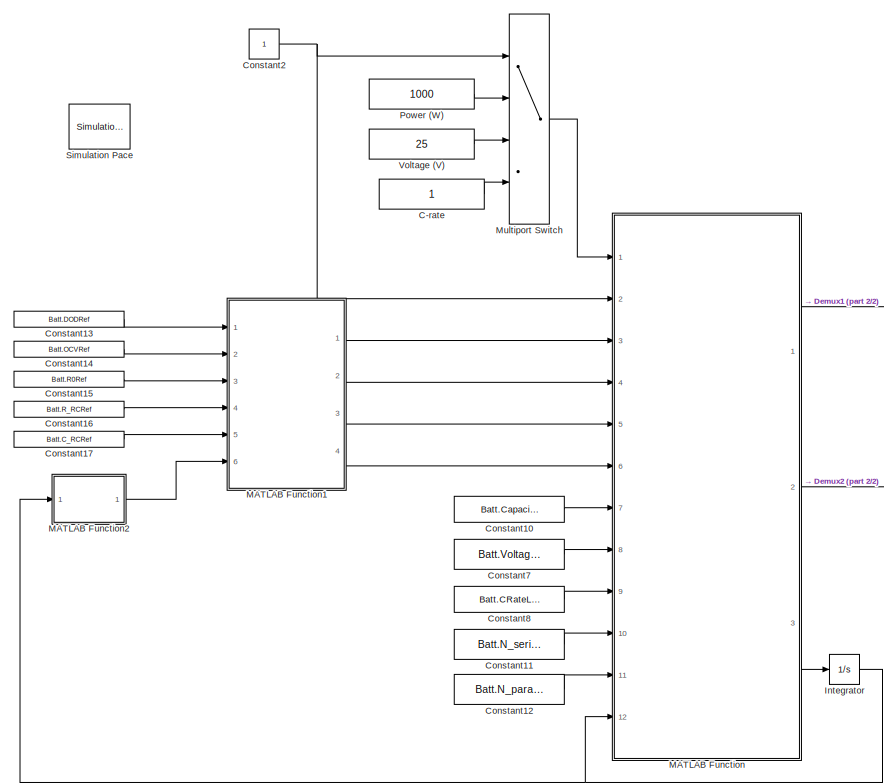
[diagram: root canvas - part 1/2, left side, full height]
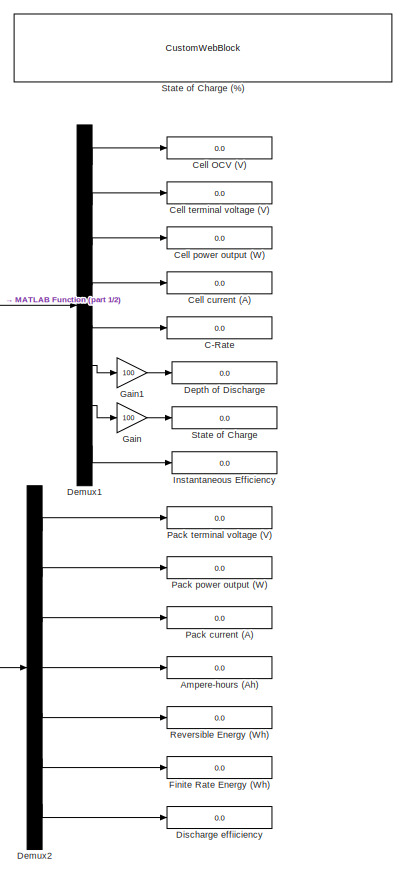
[diagram: root canvas - part 2/2, right side, full height]
MODEL slx_07d36a5ed915
KIND model
CONFIG AbsTol = auto
CONFIG EnableMultiTasking = off
CONFIG FixedStep = 1/180
CONFIG MaxStep = auto
CONFIG MinStep = auto
CONFIG RelTol = 1e-3
CONFIG SampleTimeConstraint = Unconstrained
CONFIG SolverName = ode4
CONFIG StartTime = 0.0
CONFIG StopTime = inf
BLOCK [Display] Ampere-hours (Ah)
  Decimation = 1
  Ports = [1]
BLOCK [Display] C-Rate
  Decimation = 1
  Ports = [1]
BLOCK [Constant] C-rate
BLOCK [Display] Cell OCV (V)
  Decimation = 1
  Ports = [1]
BLOCK [Display] Cell current (A)
  Decimation = 1
  Ports = [1]
BLOCK [Display] Cell power output (W)
  Decimation = 1
  Ports = [1]
BLOCK [Display] Cell terminal voltage (V)
  Decimation = 1
  Ports = [1]
BLOCK [Constant] Constant10
  Value = Batt.Capacity_Ah
BLOCK [Constant] Constant11
  Value = Batt.N_series
BLOCK [Constant] Constant12
  Value = Batt.N_parallel
BLOCK [Constant] Constant13
  Value = Batt.DODRef
BLOCK [Constant] Constant14
  Value = Batt.OCVRef
BLOCK [Constant] Constant15
  Value = Batt.R0Ref
BLOCK [Constant] Constant16
  Value = Batt.R_RCRef
BLOCK [Constant] Constant17
  Value = Batt.C_RCRef
BLOCK [Constant] Constant2
BLOCK [Constant] Constant7
  Value = Batt.VoltageLimits
BLOCK [Constant] Constant8
  Value = Batt.CRateLimits
BLOCK [Demux] Demux1
  Outputs = 8
  Ports = [1, 8]
BLOCK [Demux] Demux2
  Outputs = 7
  Ports = [1, 7]
BLOCK [Display] Depth of Discharge
  Decimation = 1
  Ports = [1]
BLOCK [Display] Discharge effiiciency
  Decimation = 1
  Ports = [1]
BLOCK [Display] Finite Rate Energy (Wh)
  Decimation = 1
  Ports = [1]
BLOCK [Gain] Gain
  Gain = 100
BLOCK [Gain] Gain1
  Gain = 100
BLOCK [Display] Instantaneous Efficiency
  Decimation = 1
  Ports = [1]
BLOCK [Integrator] Integrator
  InitialCondition = [0,0,0,0,0]
  Ports = [1, 1]
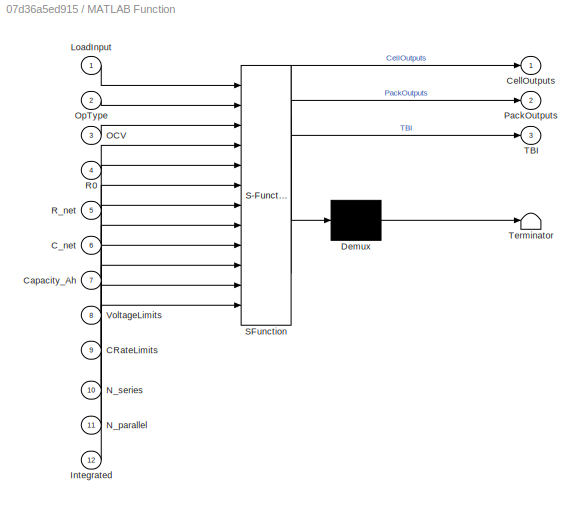
BLOCK [SubSystem] MATLAB Function
  ErrorFcn = Stateflow.Translate.translate
  PermitHierarchicalResolution = ExplicitOnly
  Ports = [12, 3]
  RequestExecContextInheritance = off
  SFBlockType = MATLAB Function
  TreatAsAtomicUnit = on
BLOCK [Demux] MATLAB Function/ Demux 
  Outputs = 1
  Ports = [1, 1]
BLOCK [S-Function] MATLAB Function/ SFunction 
  EnableBusSupport = on
  FunctionName = sf_sfun
  PortCounts = [12 4]
  Ports = [12, 4]
  SFcnIsStateOwnerBlock = off
  SFunctionDeploymentMode = off
  Tag = Stateflow S-Function 2
BLOCK [Terminator] MATLAB Function/ Terminator 
BLOCK [Inport] MATLAB Function/CRateLimits
  Port = 9
BLOCK [Inport] MATLAB Function/C_net
  Port = 6
BLOCK [Inport] MATLAB Function/Capacity_Ah
  Port = 7
BLOCK [Outport] MATLAB Function/CellOutputs
BLOCK [Inport] MATLAB Function/Integrated
  Port = 12
BLOCK [Inport] MATLAB Function/LoadInput
BLOCK [Inport] MATLAB Function/N_parallel
  Port = 11
BLOCK [Inport] MATLAB Function/N_series
  Port = 10
BLOCK [Inport] MATLAB Function/OCV
  Port = 3
BLOCK [Inport] MATLAB Function/OpType
  Port = 2
BLOCK [Outport] MATLAB Function/PackOutputs
  Port = 2
BLOCK [Inport] MATLAB Function/R0
  Port = 4
BLOCK [Inport] MATLAB Function/R_net
  Port = 5
BLOCK [Outport] MATLAB Function/TBI
  Port = 3
BLOCK [Inport] MATLAB Function/VoltageLimits
  Port = 8
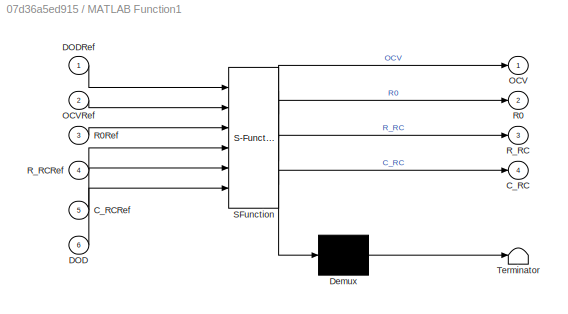
BLOCK [SubSystem] MATLAB Function1
  ErrorFcn = Stateflow.Translate.translate
  PermitHierarchicalResolution = ExplicitOnly
  Ports = [6, 4]
  RequestExecContextInheritance = off
  SFBlockType = MATLAB Function
  TreatAsAtomicUnit = on
BLOCK [Demux] MATLAB Function1/ Demux 
  Outputs = 1
  Ports = [1, 1]
BLOCK [S-Function] MATLAB Function1/ SFunction 
  EnableBusSupport = on
  FunctionName = sf_sfun
  PortCounts = [6 5]
  Ports = [6, 5]
  SFcnIsStateOwnerBlock = off
  SFunctionDeploymentMode = off
  Tag = Stateflow S-Function 1
BLOCK [Terminator] MATLAB Function1/ Terminator 
BLOCK [Outport] MATLAB Function1/C_RC
  Port = 4
BLOCK [Inport] MATLAB Function1/C_RCRef
  Port = 5
BLOCK [Inport] MATLAB Function1/DOD
  Port = 6
BLOCK [Inport] MATLAB Function1/DODRef
BLOCK [Outport] MATLAB Function1/OCV
BLOCK [Inport] MATLAB Function1/OCVRef
  Port = 2
BLOCK [Outport] MATLAB Function1/R0
  Port = 2
BLOCK [Inport] MATLAB Function1/R0Ref
  Port = 3
BLOCK [Outport] MATLAB Function1/R_RC
  Port = 3
BLOCK [Inport] MATLAB Function1/R_RCRef
  Port = 4
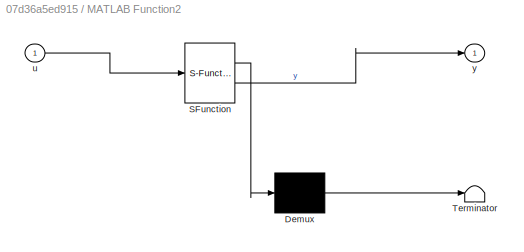
BLOCK [SubSystem] MATLAB Function2
  ErrorFcn = Stateflow.Translate.translate
  PermitHierarchicalResolution = ExplicitOnly
  Ports = [1, 1]
  RequestExecContextInheritance = off
  SFBlockType = MATLAB Function
  TreatAsAtomicUnit = on
BLOCK [Demux] MATLAB Function2/ Demux 
  Outputs = 1
  Ports = [1, 1]
BLOCK [S-Function] MATLAB Function2/ SFunction 
  EnableBusSupport = on
  FunctionName = sf_sfun
  PortCounts = [1 2]
  Ports = [1, 2]
  SFcnIsStateOwnerBlock = off
  SFunctionDeploymentMode = off
  Tag = Stateflow S-Function 3
BLOCK [Terminator] MATLAB Function2/ Terminator 
BLOCK [Inport] MATLAB Function2/u
BLOCK [Outport] MATLAB Function2/y
BLOCK [MultiPortSwitch] Multiport Switch
  InputSameDT = off
  Ports = [4, 1]
  SaturateOnIntegerOverflow = off
BLOCK [Display] Pack current (A)
  Decimation = 1
  Ports = [1]
BLOCK [Display] Pack power output (W)
  Decimation = 1
  Ports = [1]
BLOCK [Display] Pack terminal voltage (V)
  Decimation = 1
  Ports = [1]
BLOCK [Constant] Power (W)
  Value = 1000
BLOCK [Display] Reversible Energy (Wh)
  Decimation = 1
  Ports = [1]
BLOCK [Reference] Simulation Pace  REF=aerolibanimutils/Simulation Pace
  AttributesFormatString = %<SleepMode>\n%<SimulationPace> sec/sec
  Ports = []
  SourceBlock = aerolibanimutils/Simulation Pace
  SourceProductBaseCode = AE
  SourceType = Simulation Pace
BLOCK [Display] State of Charge
  Decimation = 1
  Ports = [1]
BLOCK [CustomWebBlock] State of Charge (%)
  Configuration = {"type":"LinearGauge","settings":{"BindingType":"signal","backgroundColor":[0,0,0,"1"],"backgroundOffset":0,"backgroundOpacity":1,"fixedAspectRatio":"off","orientation":"horizontal","showBackgroundColor":false,"value":0},"components":[{"name":"LinearScaleComponent","settings":{"bounds":{"max":100,"min":0,"tickInterval":"auto"},"internalTickHeightScaleFactor":0.5,"labelColor":[255,255,200],"labelFo...<+4560ch>
  LabelPosition = Hide
  ShowInitialText = on
BLOCK [Constant] Voltage (V)
  Value = 25
LINE C-rate:1 -> Multiport Switch:4
LINE Constant10:1 -> MATLAB Function:7
LINE Constant11:1 -> MATLAB Function:10
LINE Constant12:1 -> MATLAB Function:11
LINE Constant13:1 -> MATLAB Function1:1
LINE Constant14:1 -> MATLAB Function1:2
LINE Constant15:1 -> MATLAB Function1:3
LINE Constant16:1 -> MATLAB Function1:4
LINE Constant17:1 -> MATLAB Function1:5
NET Constant2:1 -> MATLAB Function:2, Multiport Switch:1
LINE Constant7:1 -> MATLAB Function:8
LINE Constant8:1 -> MATLAB Function:9
LINE Demux1:1 -> Cell OCV (V):1
LINE Demux1:2 -> Cell terminal voltage (V):1
LINE Demux1:3 -> Cell power output (W):1
LINE Demux1:4 -> Cell current (A):1
LINE Demux1:5 -> C-Rate:1
LINE Demux1:6 -> Gain1:1
LINE Demux1:7 -> Gain:1
LINE Demux1:8 -> Instantaneous Efficiency:1
LINE Demux2:1 -> Pack terminal voltage (V):1
LINE Demux2:2 -> Pack power output (W):1
LINE Demux2:3 -> Pack current (A):1
LINE Demux2:4 -> Ampere-hours (Ah):1
LINE Demux2:5 -> Reversible Energy (Wh):1
LINE Demux2:6 -> Finite Rate Energy (Wh):1
LINE Demux2:7 -> Discharge effiiciency:1
LINE Gain1:1 -> Depth of Discharge:1
LINE Gain:1 -> State of Charge:1
NET Integrator:1 -> MATLAB Function2:1, MATLAB Function:12
LINE MATLAB Function1:1 -> MATLAB Function:3
LINE MATLAB Function1:2 -> MATLAB Function:4
LINE MATLAB Function1:3 -> MATLAB Function:5
LINE MATLAB Function1:4 -> MATLAB Function:6
LINE MATLAB Function2:1 -> MATLAB Function1:6
LINE MATLAB Function:1 -> Demux1:1
LINE MATLAB Function:2 -> Demux2:1
LINE MATLAB Function:3 -> Integrator:1
LINE Multiport Switch:1 -> MATLAB Function:1
LINE Power (W):1 -> Multiport Switch:2
LINE Voltage (V):1 -> Multiport Switch:3
note: NET lines group one-source signal fan-out (src -> all destinations, sorted); 1:1 wires keep LINE
CHART MATLAB Function1 states=1 transitions=1
  STATE_LABEL 'eML_blk_kernel()'
  STATE_LABEL "SCRIPT:\nfunction [OCV, R0, R_RC, C_RC] = fcn(DODRef, OCVRef, R0Ref, R_RCRef, C_RCRef, DOD)\n\n\nDODRef = DODRef';\nOCVRef = OCVRef';\nR0Ref = R0Ref';\nR_RCRef = R_RCRef';\nC_RCRef = C_RCRef';\n\nIndexNum = 1:1:length(DODRef);\n\n% Find the indices bracketing the incoming DOD value\ninds = find(DOD<DODRef);\ninds(isempty(inds)) = max(IndexNum);\nind_high = inds(1);\nind_low = max(1,ind_high-1);\nII = ind_low + min...<+380ch>"
CHART MATLAB Function states=1 transitions=1
  STATE_LABEL 'eML_blk_kernel()'
  STATE_LABEL "SCRIPT:\nfunction [CellOutputs, PackOutputs, TBI] = BatteryDynamicsShell(LoadInput, OpType, OCV, R0, R_net, C_net, Capacity_Ah, VoltageLimits, CRateLimits, N_series, N_parallel, Integrated)\n\n% coder.extrinsic('BatteryDynamics.m')\n\nBattParams.Capacity_Ah = Capacity_Ah;\nBattParams.VoltageLimits = VoltageLimits;\nBattParams.CRateLimits = CRateLimits;\nBattParams.N_series = N_series;\nBattParams.N_paralle...<+135ch>"
CHART MATLAB Function2 states=1 transitions=1
  STATE_LABEL 'eML_blk_kernel()'
  STATE_LABEL 'SCRIPT:\nfunction y = fcn(u)\n\ny = u(1);\n'
CHART  states=0 transitions=0
CHART  states=0 transitions=0
CHART  states=0 transitions=0
